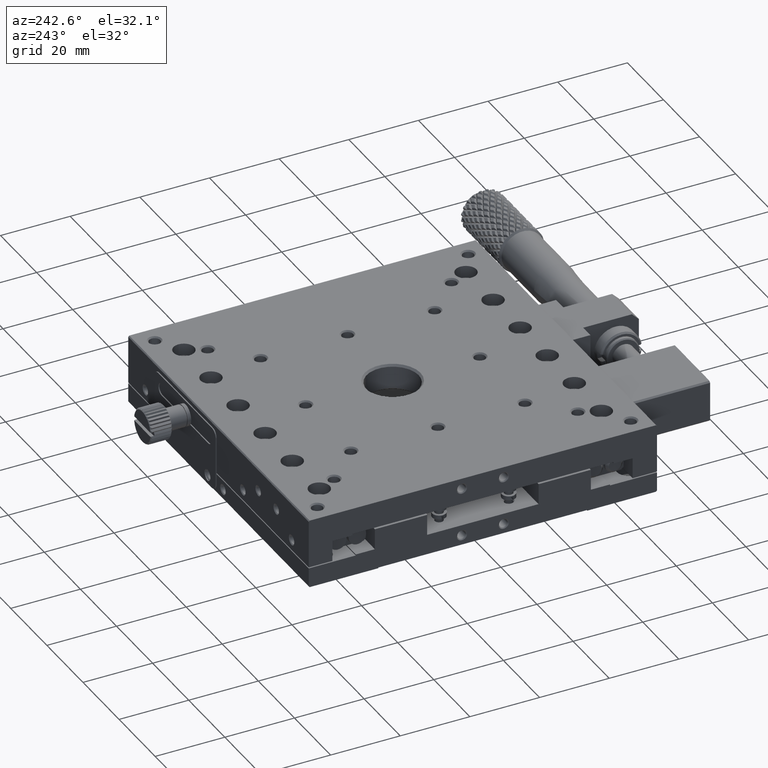
[diagram: clean part render]
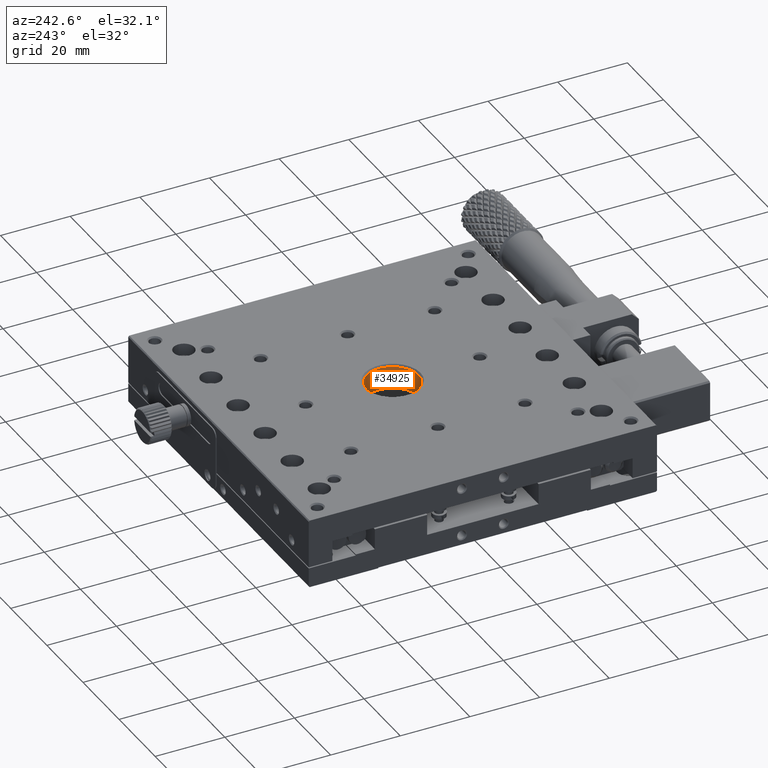
[diagram: same view with one face highlighted and labeled with its STEP entity id]
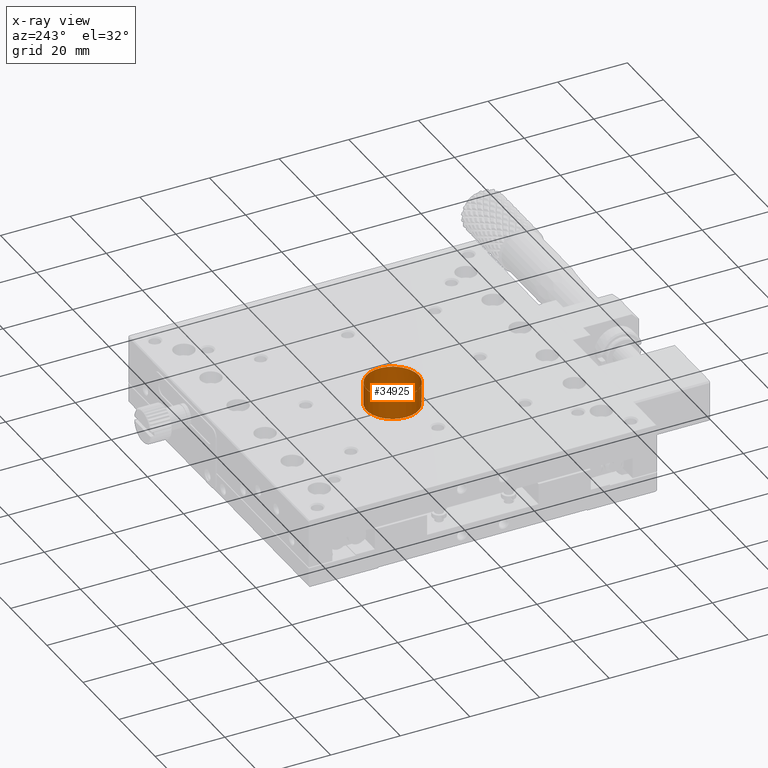
[diagram: x-ray of the same camera — body ghosted, the highlighted face saturated]
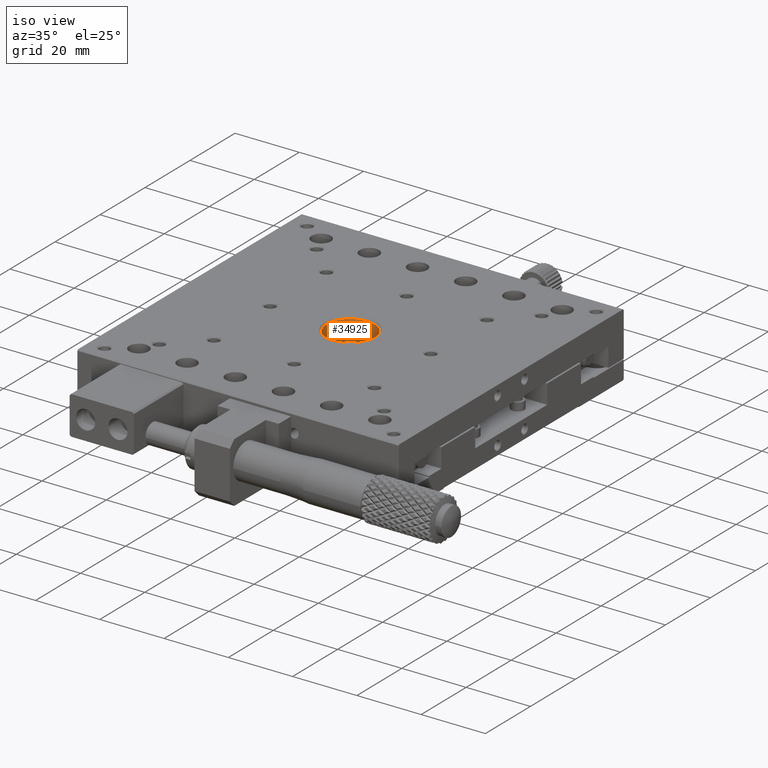
[diagram: same view with one face highlighted and labeled with its STEP entity id]
A machine part, auxiliary view. The second image highlights one B-rep face of the part: STEP entity #34925.
The next image is the same camera in x-ray: the body ghosted, the highlighted face saturated — about 0% of this face is hidden behind the body in this view.
A second angle (iso view) of the same face is appended — the face is thin or edge-on in the first view.
In plain terms, the highlighted cylindrical surface (bore or boss wall) has radius 7.4585 mm, axis along (0, -0, 1).
Its self-contained STEP definition (entity closure, byte-faithful):
#4332 = CIRCLE ( 'NONE', #57780, 7.458499999998618790 ) ;
#6276 = DIRECTION ( 'NONE',  ( -1.000000000000000000, 0.000000000000000000, 0.000000000000000000 ) ) ;
#6728 = EDGE_LOOP ( 'NONE', ( #66628 ) ) ;
#7378 = DIRECTION ( 'NONE',  ( -1.000000000000000000, 0.000000000000000000, 0.000000000000000000 ) ) ;
#7954 = EDGE_LOOP ( 'NONE', ( #62269 ) ) ;
#8402 = DIRECTION ( 'NONE',  ( -1.000000000000000000, 0.000000000000000000, 0.000000000000000000 ) ) ;
#10026 = CARTESIAN_POINT ( 'NONE',  ( 0.000000000000000000, 0.000000000000000000, 19.45850000000138280 ) ) ;
#14559 = DIRECTION ( 'NONE',  ( 0.000000000000000000, -0.000000000000000000, 1.000000000000000000 ) ) ;
#20477 = EDGE_CURVE ( 'NONE', #49863, #49863, #4332, .T. ) ;
#20476 = FACE_OUTER_BOUND ( 'NONE', #6728, .T. ) ;
#21280 = CARTESIAN_POINT ( 'NONE',  ( -7.458499999998618790, 0.000000000000000000, 19.45850000000138280 ) ) ;
#24277 = DIRECTION ( 'NONE',  ( 0.000000000000000000, -0.000000000000000000, 1.000000000000000000 ) ) ;
#31876 = CARTESIAN_POINT ( 'NONE',  ( 0.000000000000000000, 0.000000000000000000, 12.50000000000001066 ) ) ;
#34925 = ADVANCED_FACE ( 'NONE', ( #20476, #44536 ), #69040, .F. ) ;
#44536 = FACE_OUTER_BOUND ( 'NONE', #7954, .T. ) ;
#44822 = AXIS2_PLACEMENT_3D ( 'NONE', #55292, #24277, #6276 ) ;
#48748 = CIRCLE ( 'NONE', #44822, 7.458499999999999908 ) ;
#49863 = VERTEX_POINT ( 'NONE', #21280 ) ;
#55292 = CARTESIAN_POINT ( 'NONE',  ( 0.000000000000000000, 0.000000000000000000, 13.04150000000000098 ) ) ;
#57780 = AXIS2_PLACEMENT_3D ( 'NONE', #10026, #14559, #8402 ) ;
#62269 = ORIENTED_EDGE ( 'NONE', *, *, #65609, .F. ) ;
#64750 = AXIS2_PLACEMENT_3D ( 'NONE', #31876, #69439, #7378 ) ;
#65531 = VERTEX_POINT ( 'NONE', #72858 ) ;
#65609 = EDGE_CURVE ( 'NONE', #65531, #65531, #48748, .T. ) ;
#66628 = ORIENTED_EDGE ( 'NONE', *, *, #20477, .T. ) ;
#69040 = CYLINDRICAL_SURFACE ( 'NONE', #64750, 7.458499999999999908 ) ;
#69439 = DIRECTION ( 'NONE',  ( 0.000000000000000000, -0.000000000000000000, 1.000000000000000000 ) ) ;
#72858 = CARTESIAN_POINT ( 'NONE',  ( -7.458499999999999908, 0.000000000000000000, 13.04150000000000098 ) ) ;